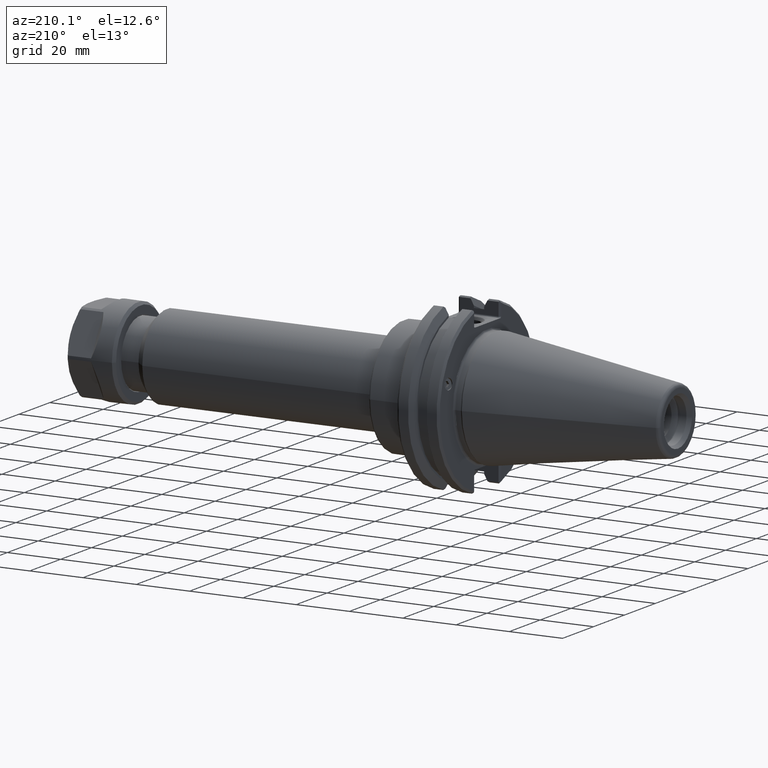
[diagram: clean part render]
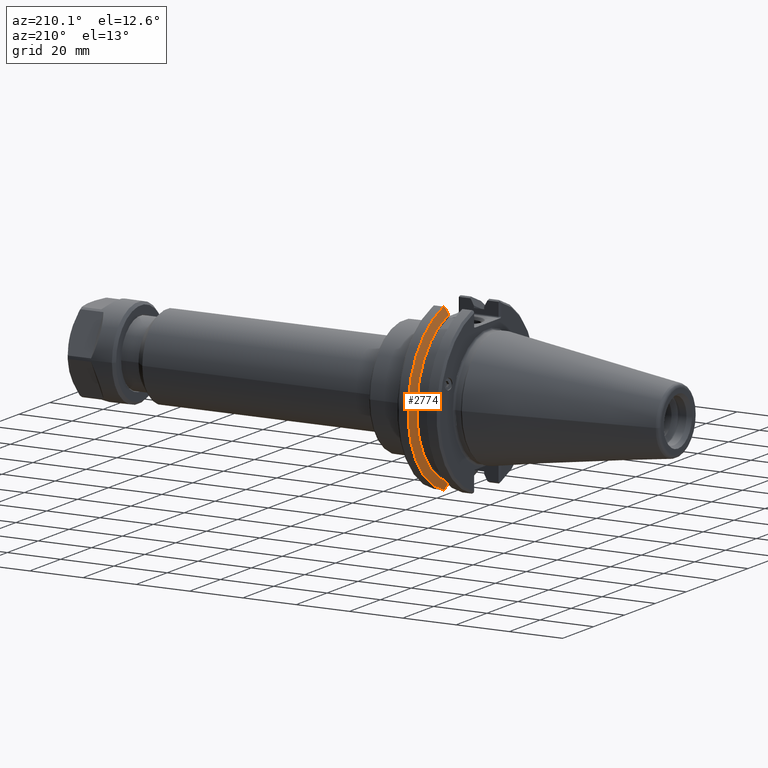
[diagram: same view with one face highlighted and labeled with its STEP entity id]
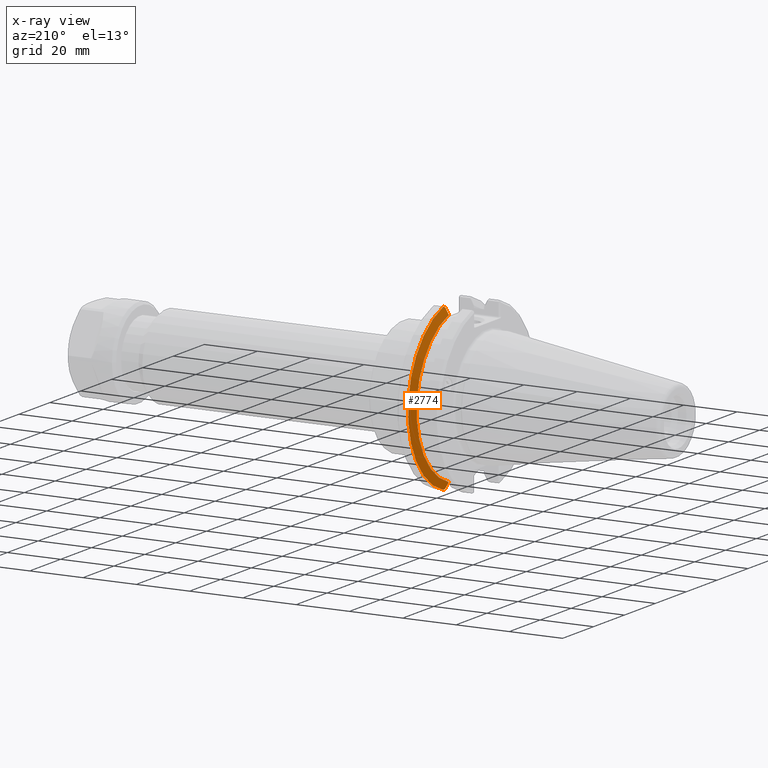
[diagram: x-ray of the same camera — body ghosted, the highlighted face saturated]
A machine part, auxiliary view. The second image highlights one B-rep face of the part: STEP entity #2774.
The next image is the same camera in x-ray: the body ghosted, the highlighted face saturated — about 0% of this face is hidden behind the body in this view.
In plain terms, the highlighted conical surface has half-angle 60 deg.
Its self-contained STEP definition (entity closure, byte-faithful):
#57=(
BOUNDED_CURVE()
B_SPLINE_CURVE(2,(#4369,#4370,#4371),.UNSPECIFIED.,.F.,.F.)
B_SPLINE_CURVE_WITH_KNOTS((3,3),(0.,0.260803090047858),.UNSPECIFIED.)
CURVE()
GEOMETRIC_REPRESENTATION_ITEM()
RATIONAL_B_SPLINE_CURVE((1.,1.00089549356811,1.00037936412925))
REPRESENTATION_ITEM('')
);
#70=(
BOUNDED_CURVE()
B_SPLINE_CURVE(2,(#4521,#4522,#4523),.UNSPECIFIED.,.F.,.F.)
B_SPLINE_CURVE_WITH_KNOTS((3,3),(0.0700890653315302,0.330892155380645),
 .UNSPECIFIED.)
CURVE()
GEOMETRIC_REPRESENTATION_ITEM()
RATIONAL_B_SPLINE_CURVE((1.00037936412915,1.00089549356791,1.))
REPRESENTATION_ITEM('')
);
#80=(
BOUNDED_CURVE()
B_SPLINE_CURVE(2,(#4583,#4584,#4585),.UNSPECIFIED.,.F.,.F.)
B_SPLINE_CURVE_WITH_KNOTS((3,3),(0.310567973942218,0.391925496551485),
 .UNSPECIFIED.)
CURVE()
GEOMETRIC_REPRESENTATION_ITEM()
RATIONAL_B_SPLINE_CURVE((1.00057146939281,1.00036058680278,1.))
REPRESENTATION_ITEM('')
);
#86=(
BOUNDED_CURVE()
B_SPLINE_CURVE(2,(#4620,#4621,#4622),.UNSPECIFIED.,.F.,.F.)
B_SPLINE_CURVE_WITH_KNOTS((3,3),(0.,0.0813575226085234),.UNSPECIFIED.)
CURVE()
GEOMETRIC_REPRESENTATION_ITEM()
RATIONAL_B_SPLINE_CURVE((1.,1.00036058680282,1.00057146939288))
REPRESENTATION_ITEM('')
);
#516=CONICAL_SURFACE('',#3039,1.2859099179857,59.9999999999907);
#657=CIRCLE('',#3011,1.25);
#668=CIRCLE('',#3040,1.14031983597144);
#935=FACE_OUTER_BOUND('',#1166,.T.);
#1166=EDGE_LOOP('',(#2296,#2297,#2298,#2299,#2300,#2301));
#1386=VERTEX_POINT('',#4366);
#1387=VERTEX_POINT('',#4368);
#1430=VERTEX_POINT('',#4518);
#1431=VERTEX_POINT('',#4520);
#1443=VERTEX_POINT('',#4582);
#1447=VERTEX_POINT('',#4604);
#1657=EDGE_CURVE('',#1387,#1386,#57,.T.);
#1721=EDGE_CURVE('',#1431,#1430,#70,.T.);
#1742=EDGE_CURVE('',#1431,#1443,#80,.T.);
#1749=EDGE_CURVE('',#1443,#1447,#657,.T.);
#1755=EDGE_CURVE('',#1447,#1386,#86,.T.);
#1766=EDGE_CURVE('',#1387,#1430,#668,.T.);
#2296=ORIENTED_EDGE('',*,*,#1742,.F.);
#2297=ORIENTED_EDGE('',*,*,#1721,.T.);
#2298=ORIENTED_EDGE('',*,*,#1766,.F.);
#2299=ORIENTED_EDGE('',*,*,#1657,.T.);
#2300=ORIENTED_EDGE('',*,*,#1755,.F.);
#2301=ORIENTED_EDGE('',*,*,#1749,.F.);
#2774=ADVANCED_FACE('',(#935),#516,.T.);
#3011=AXIS2_PLACEMENT_3D('',#4605,#3577,#3578);
#3039=AXIS2_PLACEMENT_3D('',#4657,#3635,#3636);
#3040=AXIS2_PLACEMENT_3D('',#4658,#3637,#3638);
#3577=DIRECTION('center_axis',(1.,0.,0.));
#3578=DIRECTION('ref_axis',(-1.62451355720802E-13,1.,0.));
#3635=DIRECTION('center_axis',(1.,1.62451355720802E-13,0.));
#3636=DIRECTION('ref_axis',(-1.62482077846417E-13,1.,0.));
#3637=DIRECTION('center_axis',(-1.,-1.62451355720802E-13,0.));
#3638=DIRECTION('ref_axis',(-1.62482077846417E-13,1.,0.));
#4366=CARTESIAN_POINT('',(0.563230740453661,0.320000000000281,1.18334597694527));
#4368=CARTESIAN_POINT('',(0.513849999999924,0.320000000000281,1.09449957894462));
#4369=CARTESIAN_POINT('Ctrl Pts',(0.51384999999979,0.320000000000281,1.09449957894438));
#4370=CARTESIAN_POINT('Ctrl Pts',(0.537577332827425,0.320000000000281,1.13731701223234));
#4371=CARTESIAN_POINT('Ctrl Pts',(0.563230740453661,0.320000000000281,1.18334597694527));
#4518=CARTESIAN_POINT('',(0.513849999999924,0.320000000000302,-1.09449957894461));
#4520=CARTESIAN_POINT('',(0.56323074045367,0.32000000000031,-1.18334597694528));
#4521=CARTESIAN_POINT('Ctrl Pts',(0.56323074045367,0.32000000000031,-1.18334597694528));
#4522=CARTESIAN_POINT('Ctrl Pts',(0.53757733282697,0.320000000000306,-1.13731701223152));
#4523=CARTESIAN_POINT('Ctrl Pts',(0.51384999999979,0.320000000000302,-1.09449957894437));
#4582=CARTESIAN_POINT('',(0.577173872226652,0.344098106798386,-1.20170565984261));
#4583=CARTESIAN_POINT('Ctrl Pts',(0.56323074045367,0.32000000000031,-1.18334597694528));
#4584=CARTESIAN_POINT('Ctrl Pts',(0.570095294562312,0.331931523167105,-1.1924362753517));
#4585=CARTESIAN_POINT('Ctrl Pts',(0.577173872227149,0.344098106799439,-1.2017056598434));
#4604=CARTESIAN_POINT('',(0.577173872226652,0.344098106798413,1.2017056598426));
#4605=CARTESIAN_POINT('Origin',(0.577173872226652,0.,0.));
#4620=CARTESIAN_POINT('Ctrl Pts',(0.577173872227002,0.344098106799196,1.2017056598432));
#4621=CARTESIAN_POINT('Ctrl Pts',(0.570095294562237,0.331931523166972,1.1924362753516));
#4622=CARTESIAN_POINT('Ctrl Pts',(0.563230740453661,0.320000000000281,1.18334597694527));
#4657=CARTESIAN_POINT('Origin',(0.59790647304228,3.15424726389789E-13,0.));
#4658=CARTESIAN_POINT('Origin',(0.513849999999975,3.01769638386957E-13,
0.));